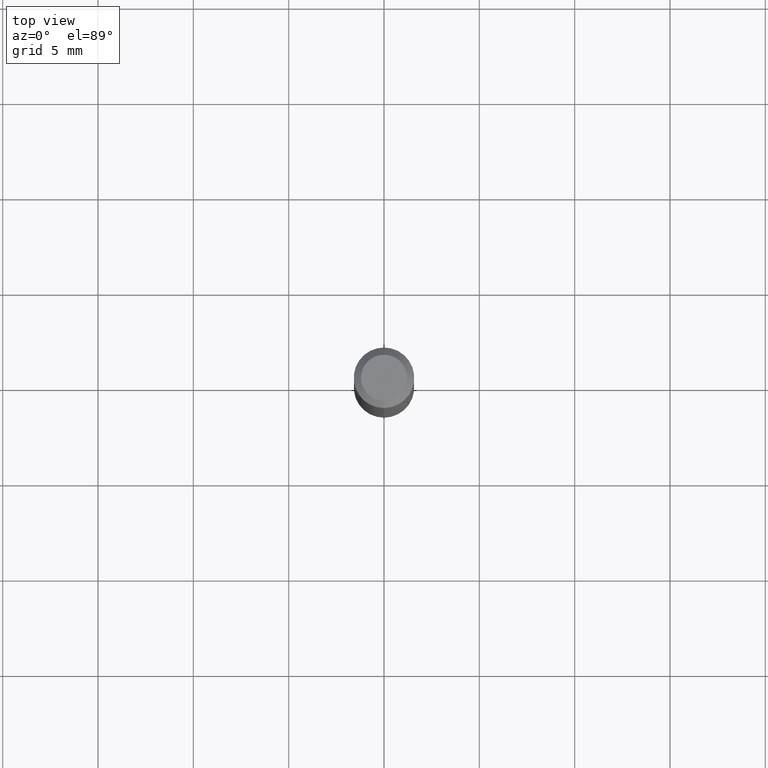
[diagram: clean part render]
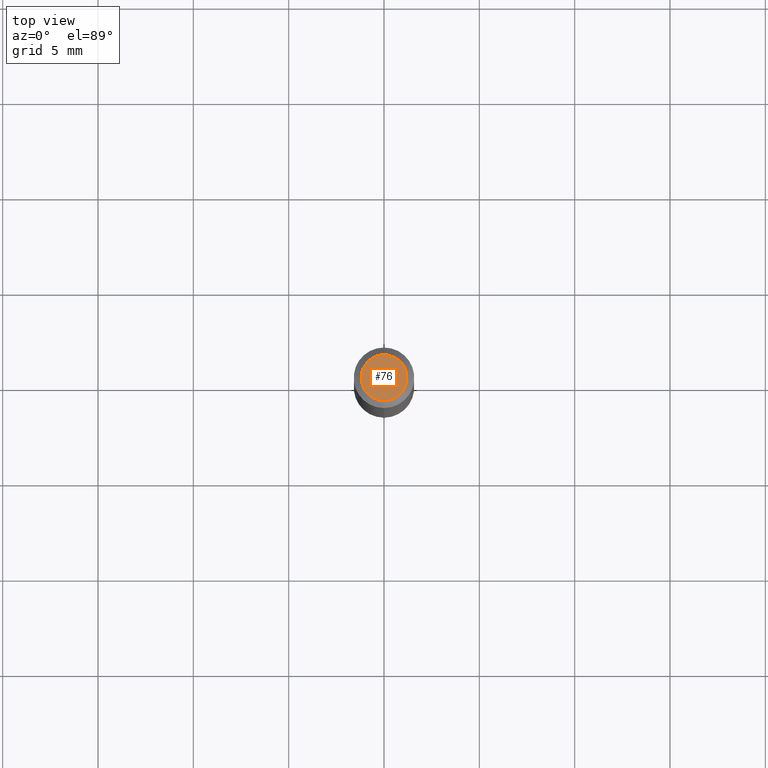
[diagram: same view with one face highlighted and labeled with its STEP entity id]
A machine part, top view. The second image highlights one B-rep face of the part: STEP entity #76.
In plain terms, the highlighted planar face has unit normal (0, -0, -1).
Its self-contained STEP definition (entity closure, byte-faithful):
#12 = CIRCLE ( 'NONE', #93, 0.04749999999999999362 ) ;
#25 = DIRECTION ( 'NONE',  ( -2.445470756859343624E-29, 3.491478545366655797E-15, 1.000000000000000000 ) ) ;
#72 = CIRCLE ( 'NONE', #240, 0.04749999999999999362 ) ;
#76 = ADVANCED_FACE ( 'NONE', ( #163 ), #484, .F. ) ;
#93 = AXIS2_PLACEMENT_3D ( 'NONE', #429, #25, #222 ) ;
#126 = CARTESIAN_POINT ( 'NONE',  ( 3.316907271900976096E-16, 0.04749999999999999362, -3.299187711060625845E-16 ) ) ;
#145 = VERTEX_POINT ( 'NONE', #382 ) ;
#163 = FACE_OUTER_BOUND ( 'NONE', #238, .T. ) ;
#182 = CARTESIAN_POINT ( 'NONE',  ( 8.024740890725792130E-45, -1.145718490949312714E-30, -3.281470804022929806E-16 ) ) ;
#222 = DIRECTION ( 'NONE',  ( -6.982962677686266711E-15, -1.000000000000000000, 3.491478545366656192E-15 ) ) ;
#238 = EDGE_LOOP ( 'NONE', ( #393, #270 ) ) ;
#240 = AXIS2_PLACEMENT_3D ( 'NONE', #182, #340, #503 ) ;
#257 = CARTESIAN_POINT ( 'NONE',  ( -3.773273898774340269E-16, -0.04749999999999999362, -1.623018494973768125E-16 ) ) ;
#270 = ORIENTED_EDGE ( 'NONE', *, *, #501, .T. ) ;
#299 = EDGE_CURVE ( 'NONE', #145, #368, #12, .T. ) ;
#327 = DIRECTION ( 'NONE',  ( 6.982962677686265922E-15, 1.000000000000000000, -3.491478545366656192E-15 ) ) ;
#340 = DIRECTION ( 'NONE',  ( -2.445470756859343624E-29, 3.491478545366655797E-15, 1.000000000000000000 ) ) ;
#364 = AXIS2_PLACEMENT_3D ( 'NONE', #126, #369, #327 ) ;
#368 = VERTEX_POINT ( 'NONE', #257 ) ;
#369 = DIRECTION ( 'NONE',  ( 2.445470756859342783E-29, -3.491478545366656192E-15, -1.000000000000000000 ) ) ;
#382 = CARTESIAN_POINT ( 'NONE',  ( 3.840629472727447874E-16, 0.04749999999999999362, -4.939923113072091241E-16 ) ) ;
#393 = ORIENTED_EDGE ( 'NONE', *, *, #299, .T. ) ;
#429 = CARTESIAN_POINT ( 'NONE',  ( 8.024740890725792130E-45, -1.145718490949312714E-30, -3.281470804022929806E-16 ) ) ;
#484 = PLANE ( 'NONE',  #364 ) ;
#501 = EDGE_CURVE ( 'NONE', #368, #145, #72, .T. ) ;
#503 = DIRECTION ( 'NONE',  ( -6.982962677686266711E-15, -1.000000000000000000, 3.491478545366656192E-15 ) ) ;